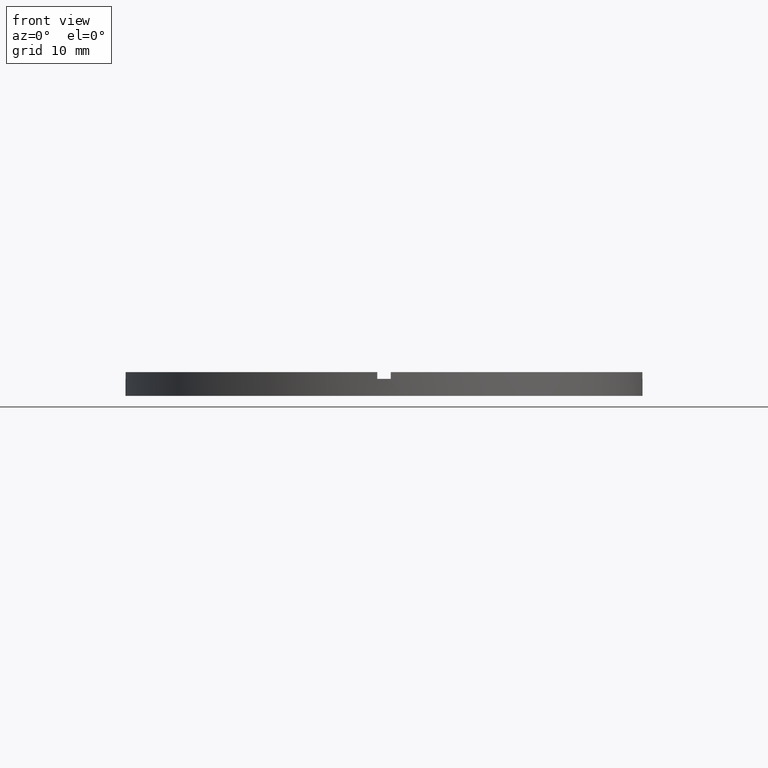
[diagram: clean part render]
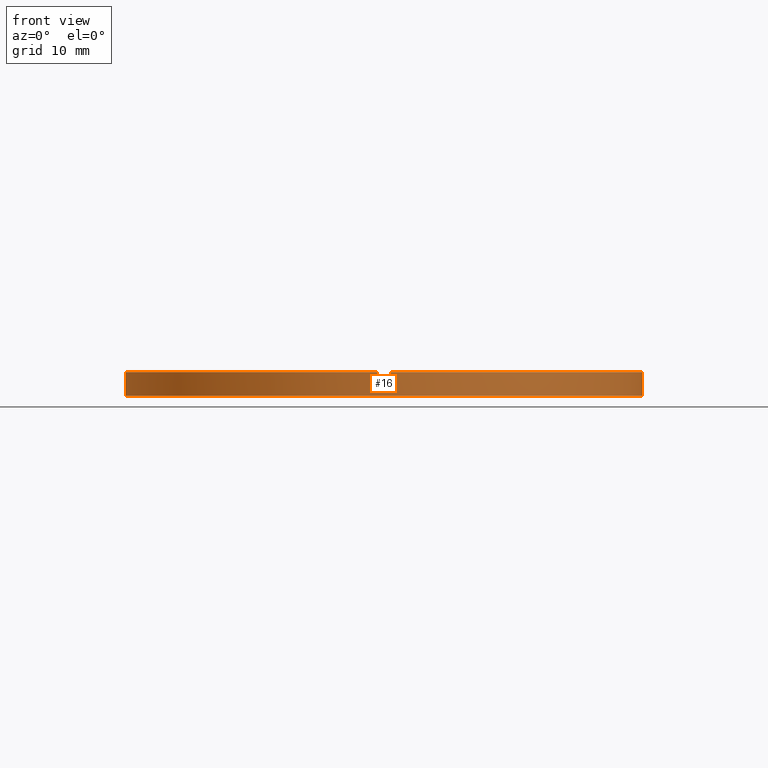
[diagram: same view with one face highlighted and labeled with its STEP entity id]
A machine part, front view. The second image highlights one B-rep face of the part: STEP entity #16.
In plain terms, the highlighted cylindrical surface (partial cylindrical patch) has radius 38 mm, axis along (-0, -0, -1).
Its self-contained STEP definition (entity closure, byte-faithful):
#16 = ADVANCED_FACE ( 'NONE', ( #180 ), #187, .T. ) ;
#28 = EDGE_CURVE ( 'NONE', #379, #376, #472, .T. ) ;
#36 = DIRECTION ( 'NONE',  ( 0.000000000000000000, 0.000000000000000000, 1.000000000000000000 ) ) ;
#38 = CARTESIAN_POINT ( 'NONE',  ( 37.98683982644514856, -1.000000000000157430, 2.500000000000000000 ) ) ;
#41 = LINE ( 'NONE', #66, #49 ) ;
#49 = VECTOR ( 'NONE', #737, 1000.000000000000000 ) ;
#54 = CARTESIAN_POINT ( 'NONE',  ( 38.00000000000000000, 4.653657836759941941E-15, 3.500000000000000000 ) ) ;
#56 = CARTESIAN_POINT ( 'NONE',  ( 0.000000000000000000, 0.000000000000000000, 3.500000000000000000 ) ) ;
#65 = EDGE_CURVE ( 'NONE', #488, #376, #182, .T. ) ;
#66 = CARTESIAN_POINT ( 'NONE',  ( -38.00000000000000000, 0.000000000000000000, 3.500000000000000000 ) ) ;
#79 = VECTOR ( 'NONE', #560, 1000.000000000000000 ) ;
#81 = DIRECTION ( 'NONE',  ( 0.000000000000000000, 0.000000000000000000, 1.000000000000000000 ) ) ;
#97 = ORIENTED_EDGE ( 'NONE', *, *, #121, .T. ) ;
#101 = VERTEX_POINT ( 'NONE', #257 ) ;
#102 = ORIENTED_EDGE ( 'NONE', *, *, #781, .F. ) ;
#107 = EDGE_CURVE ( 'NONE', #379, #256, #188, .T. ) ;
#113 = DIRECTION ( 'NONE',  ( -0.000000000000000000, -0.000000000000000000, -1.000000000000000000 ) ) ;
#117 = DIRECTION ( 'NONE',  ( 1.000000000000000000, 0.000000000000000000, 0.000000000000000000 ) ) ;
#121 = EDGE_CURVE ( 'NONE', #488, #460, #478, .T. ) ;
#131 = CARTESIAN_POINT ( 'NONE',  ( 0.000000000000000000, 0.000000000000000000, 2.500000000000000000 ) ) ;
#132 = VERTEX_POINT ( 'NONE', #296 ) ;
#148 = VERTEX_POINT ( 'NONE', #418 ) ;
#155 = AXIS2_PLACEMENT_3D ( 'NONE', #779, #113, #586 ) ;
#161 = CARTESIAN_POINT ( 'NONE',  ( 0.9999999999998402389, -37.98683982644516277, 2.500000000000000000 ) ) ;
#162 = CARTESIAN_POINT ( 'NONE',  ( -37.98683982644515567, -1.000000000000027756, 3.500000000000000000 ) ) ;
#167 = DIRECTION ( 'NONE',  ( 0.000000000000000000, 0.000000000000000000, 1.000000000000000000 ) ) ;
#173 = EDGE_CURVE ( 'NONE', #626, #101, #213, .T. ) ;
#180 = FACE_OUTER_BOUND ( 'NONE', #663, .T. ) ;
#182 = CIRCLE ( 'NONE', #443, 38.00000000000000000 ) ;
#187 = CYLINDRICAL_SURFACE ( 'NONE', #155, 38.00000000000000000 ) ;
#188 = CIRCLE ( 'NONE', #713, 38.00000000000000000 ) ;
#198 = AXIS2_PLACEMENT_3D ( 'NONE', #568, #81, #278 ) ;
#203 = CARTESIAN_POINT ( 'NONE',  ( -38.00000000000000000, 0.000000000000000000, 0.000000000000000000 ) ) ;
#213 = CIRCLE ( 'NONE', #776, 38.00000000000000000 ) ;
#232 = CARTESIAN_POINT ( 'NONE',  ( 37.98683982644514856, -1.000000000000157430, 3.500000000000000000 ) ) ;
#233 = ORIENTED_EDGE ( 'NONE', *, *, #413, .T. ) ;
#254 = ORIENTED_EDGE ( 'NONE', *, *, #107, .F. ) ;
#255 = ORIENTED_EDGE ( 'NONE', *, *, #442, .F. ) ;
#256 = VERTEX_POINT ( 'NONE', #530 ) ;
#257 = CARTESIAN_POINT ( 'NONE',  ( -37.98683982644515567, -1.000000000000027756, 2.500000000000000000 ) ) ;
#277 = CARTESIAN_POINT ( 'NONE',  ( 0.000000000000000000, 0.000000000000000000, 2.500000000000000000 ) ) ;
#278 = DIRECTION ( 'NONE',  ( 1.000000000000000000, 0.000000000000000000, 0.000000000000000000 ) ) ;
#284 = DIRECTION ( 'NONE',  ( 1.000000000000000000, 0.000000000000000000, 0.000000000000000000 ) ) ;
#296 = CARTESIAN_POINT ( 'NONE',  ( -1.000000000000159872, -37.98683982644514856, 3.500000000000000000 ) ) ;
#303 = CARTESIAN_POINT ( 'NONE',  ( 0.000000000000000000, 0.000000000000000000, 2.500000000000000000 ) ) ;
#322 = VECTOR ( 'NONE', #167, 1000.000000000000000 ) ;
#335 = CARTESIAN_POINT ( 'NONE',  ( -1.000000000000159872, -37.98683982644514856, 2.500000000000000000 ) ) ;
#339 = CARTESIAN_POINT ( 'NONE',  ( 0.000000000000000000, 0.000000000000000000, 3.500000000000000000 ) ) ;
#345 = VECTOR ( 'NONE', #361, 1000.000000000000000 ) ;
#348 = DIRECTION ( 'NONE',  ( 0.000000000000000000, 0.000000000000000000, 1.000000000000000000 ) ) ;
#352 = CARTESIAN_POINT ( 'NONE',  ( -38.00000000000000000, 0.000000000000000000, 2.500000000000000000 ) ) ;
#353 = CIRCLE ( 'NONE', #655, 38.00000000000000000 ) ;
#361 = DIRECTION ( 'NONE',  ( -0.000000000000000000, -0.000000000000000000, -1.000000000000000000 ) ) ;
#372 = ORIENTED_EDGE ( 'NONE', *, *, #28, .T. ) ;
#376 = VERTEX_POINT ( 'NONE', #553 ) ;
#379 = VERTEX_POINT ( 'NONE', #38 ) ;
#383 = DIRECTION ( 'NONE',  ( 1.000000000000000000, 0.000000000000000000, 0.000000000000000000 ) ) ;
#385 = DIRECTION ( 'NONE',  ( 1.000000000000000000, 0.000000000000000000, 0.000000000000000000 ) ) ;
#398 = VERTEX_POINT ( 'NONE', #203 ) ;
#400 = CARTESIAN_POINT ( 'NONE',  ( -37.98683982644515567, -1.000000000000027756, 3.500000000000000000 ) ) ;
#406 = DIRECTION ( 'NONE',  ( 0.000000000000000000, 0.000000000000000000, 1.000000000000000000 ) ) ;
#413 = EDGE_CURVE ( 'NONE', #398, #148, #558, .T. ) ;
#418 = CARTESIAN_POINT ( 'NONE',  ( 38.00000000000000000, 4.653657836759941941E-15, 0.000000000000000000 ) ) ;
#442 = EDGE_CURVE ( 'NONE', #718, #132, #554, .T. ) ;
#443 = AXIS2_PLACEMENT_3D ( 'NONE', #339, #406, #284 ) ;
#456 = DIRECTION ( 'NONE',  ( 1.000000000000000000, 0.000000000000000000, 0.000000000000000000 ) ) ;
#460 = VERTEX_POINT ( 'NONE', #161 ) ;
#472 = LINE ( 'NONE', #232, #722 ) ;
#478 = LINE ( 'NONE', #706, #485 ) ;
#483 = CARTESIAN_POINT ( 'NONE',  ( -1.000000000000159872, -37.98683982644514856, 3.500000000000000000 ) ) ;
#485 = VECTOR ( 'NONE', #758, 1000.000000000000000 ) ;
#488 = VERTEX_POINT ( 'NONE', #505 ) ;
#498 = AXIS2_PLACEMENT_3D ( 'NONE', #56, #552, #385 ) ;
#505 = CARTESIAN_POINT ( 'NONE',  ( 0.9999999999998402389, -37.98683982644516277, 3.500000000000000000 ) ) ;
#514 = ORIENTED_EDGE ( 'NONE', *, *, #752, .T. ) ;
#515 = ORIENTED_EDGE ( 'NONE', *, *, #766, .F. ) ;
#518 = ORIENTED_EDGE ( 'NONE', *, *, #65, .F. ) ;
#530 = CARTESIAN_POINT ( 'NONE',  ( 38.00000000000000000, 4.653657836759941941E-15, 2.500000000000000000 ) ) ;
#536 = DIRECTION ( 'NONE',  ( 0.000000000000000000, 0.000000000000000000, 1.000000000000000000 ) ) ;
#552 = DIRECTION ( 'NONE',  ( 0.000000000000000000, 0.000000000000000000, 1.000000000000000000 ) ) ;
#553 = CARTESIAN_POINT ( 'NONE',  ( 37.98683982644514856, -1.000000000000157430, 3.500000000000000000 ) ) ;
#554 = CIRCLE ( 'NONE', #498, 38.00000000000000000 ) ;
#558 = CIRCLE ( 'NONE', #198, 38.00000000000000000 ) ;
#560 = DIRECTION ( 'NONE',  ( -0.000000000000000000, -0.000000000000000000, -1.000000000000000000 ) ) ;
#568 = CARTESIAN_POINT ( 'NONE',  ( 0.000000000000000000, 0.000000000000000000, 0.000000000000000000 ) ) ;
#577 = LINE ( 'NONE', #54, #79 ) ;
#586 = DIRECTION ( 'NONE',  ( -1.000000000000000000, 0.000000000000000000, 0.000000000000000000 ) ) ;
#591 = LINE ( 'NONE', #483, #322 ) ;
#599 = LINE ( 'NONE', #162, #345 ) ;
#608 = DIRECTION ( 'NONE',  ( -0.000000000000000000, 0.000000000000000000, 1.000000000000000000 ) ) ;
#618 = ORIENTED_EDGE ( 'NONE', *, *, #173, .F. ) ;
#623 = ORIENTED_EDGE ( 'NONE', *, *, #679, .T. ) ;
#626 = VERTEX_POINT ( 'NONE', #352 ) ;
#649 = VERTEX_POINT ( 'NONE', #335 ) ;
#655 = AXIS2_PLACEMENT_3D ( 'NONE', #131, #608, #383 ) ;
#663 = EDGE_LOOP ( 'NONE', ( #102, #254, #372, #518, #97, #515, #742, #255, #623, #618, #514, #233 ) ) ;
#679 = EDGE_CURVE ( 'NONE', #718, #101, #599, .T. ) ;
#702 = EDGE_CURVE ( 'NONE', #649, #132, #591, .T. ) ;
#706 = CARTESIAN_POINT ( 'NONE',  ( 0.9999999999998402389, -37.98683982644516277, 3.500000000000000000 ) ) ;
#713 = AXIS2_PLACEMENT_3D ( 'NONE', #303, #36, #117 ) ;
#718 = VERTEX_POINT ( 'NONE', #400 ) ;
#722 = VECTOR ( 'NONE', #348, 1000.000000000000000 ) ;
#737 = DIRECTION ( 'NONE',  ( -0.000000000000000000, -0.000000000000000000, -1.000000000000000000 ) ) ;
#742 = ORIENTED_EDGE ( 'NONE', *, *, #702, .T. ) ;
#752 = EDGE_CURVE ( 'NONE', #626, #398, #41, .T. ) ;
#758 = DIRECTION ( 'NONE',  ( -0.000000000000000000, -0.000000000000000000, -1.000000000000000000 ) ) ;
#766 = EDGE_CURVE ( 'NONE', #649, #460, #353, .T. ) ;
#776 = AXIS2_PLACEMENT_3D ( 'NONE', #277, #536, #456 ) ;
#779 = CARTESIAN_POINT ( 'NONE',  ( 0.000000000000000000, 0.000000000000000000, 3.500000000000000000 ) ) ;
#781 = EDGE_CURVE ( 'NONE', #256, #148, #577, .T. ) ;